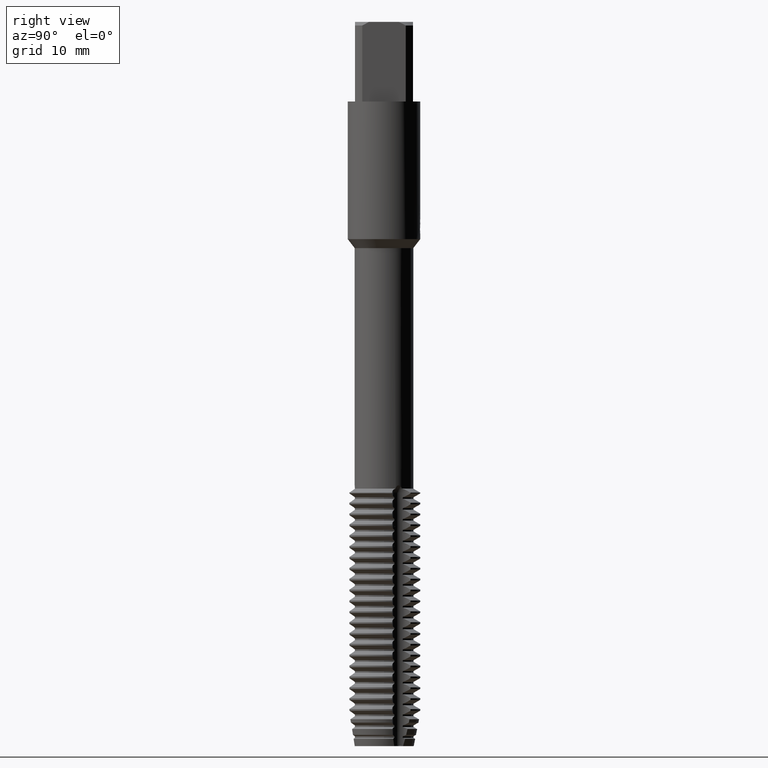
[diagram: clean part render]
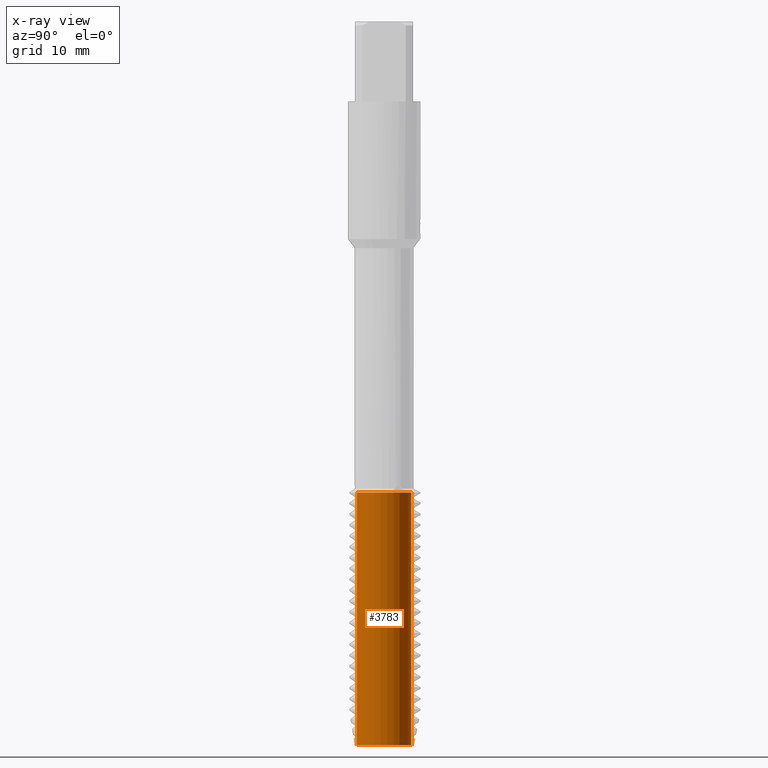
[diagram: x-ray — body ghosted, one internal face saturated and labeled with its STEP entity id]
A machine part, right view, then the same camera in x-ray: the body is ghosted and one INTERNAL B-rep face — a face not visible from any outside direction — is saturated and labeled: STEP entity #3783.
In plain terms, the highlighted cylindrical surface (edge-blend (fillet) strip) has radius 3.7693 mm, axis along (-0, -0, 1).
Its self-contained STEP definition (entity closure, byte-faithful):
#3003=VERTEX_POINT('',#8566);
#3783=ADVANCED_FACE('',(#9407),#9408,.T.);
#4259=EDGE_CURVE('',#4333,#7835,#9932,.T.);
#4333=VERTEX_POINT('',#10014);
#5151=EDGE_CURVE('',#4333,#6381,#10907,.T.);
#5999=EDGE_CURVE('',#3003,#7835,#11840,.T.);
#6381=VERTEX_POINT('',#12244);
#7029=EDGE_CURVE('',#6381,#3003,#12960,.T.);
#7835=VERTEX_POINT('',#13826);
#8566=CARTESIAN_POINT('',(4.61589778760492E-016,-3.769291065,-99.8527588956502));
#9407=FACE_OUTER_BOUND('',#16191,.T.);
#9408=CYLINDRICAL_SURFACE('',#16192,3.769291065);
#9932=CIRCLE('',#17134,3.769291065);
#10014=CARTESIAN_POINT('',(0.0,3.769291065,-65.0));
#10907=LINE('',#18719,#18720);
#11840=LINE('',#20359,#20360);
#12244=CARTESIAN_POINT('',(0.0,3.769291065,-99.8527588956502));
#12960=CIRCLE('',#22398,3.769291065);
#13826=CARTESIAN_POINT('',(4.61589778760492E-016,-3.769291065,-65.0));
#16191=EDGE_LOOP('',(#26132,#26133,#26134,#26135));
#16192=AXIS2_PLACEMENT_3D('',#26136,#26137,#26138);
#17134=AXIS2_PLACEMENT_3D('',#26694,#26695,#26696);
#18719=CARTESIAN_POINT('',(-4.61589778760492E-016,3.769291065,-82.4263794478251));
#18720=VECTOR('',#27748,1.0);
#20359=CARTESIAN_POINT('',(4.61589778760492E-016,-3.769291065,-82.4263794478251));
#20360=VECTOR('',#28999,1.0);
#22398=AXIS2_PLACEMENT_3D('',#30346,#30347,#30348);
#26132=ORIENTED_EDGE('',*,*,#5151,.F.);
#26133=ORIENTED_EDGE('',*,*,#4259,.T.);
#26134=ORIENTED_EDGE('',*,*,#5999,.F.);
#26135=ORIENTED_EDGE('',*,*,#7029,.F.);
#26136=CARTESIAN_POINT('',(0.0,0.0,-82.4263794478251));
#26137=DIRECTION('',(-0.0,-0.0,1.0));
#26138=DIRECTION('',(0.0,1.0,0.0));
#26694=CARTESIAN_POINT('',(0.0,0.0,-65.0));
#26695=DIRECTION('',(0.0,0.0,-1.0));
#26696=DIRECTION('',(0.0,1.0,0.0));
#27748=DIRECTION('',(0.0,0.0,-1.0));
#28999=DIRECTION('',(-0.0,-0.0,1.0));
#30346=CARTESIAN_POINT('',(0.0,0.0,-99.8527588956502));
#30347=DIRECTION('',(0.0,0.0,-1.0));
#30348=DIRECTION('',(0.0,1.0,0.0));